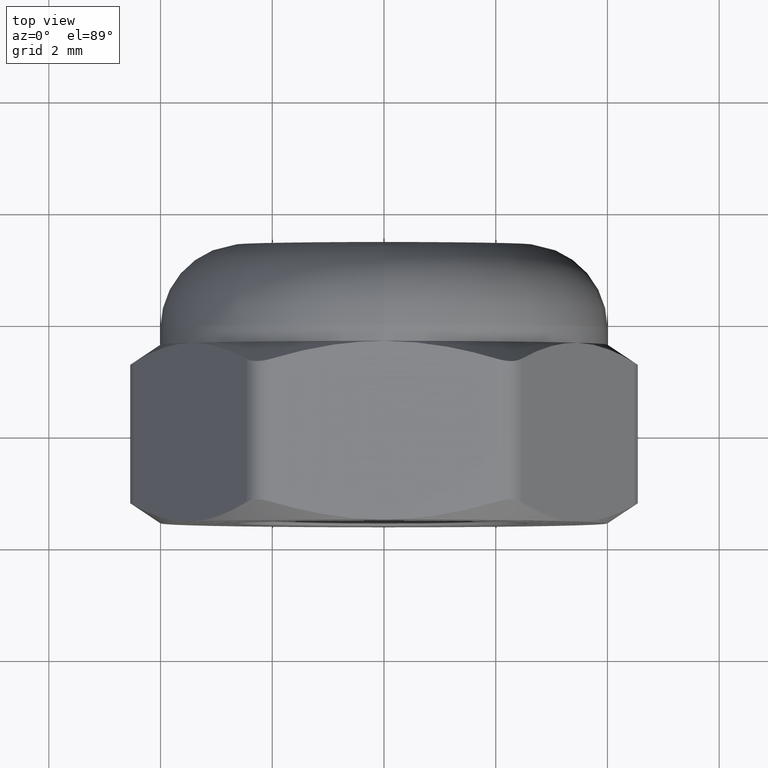
[diagram: clean part render]
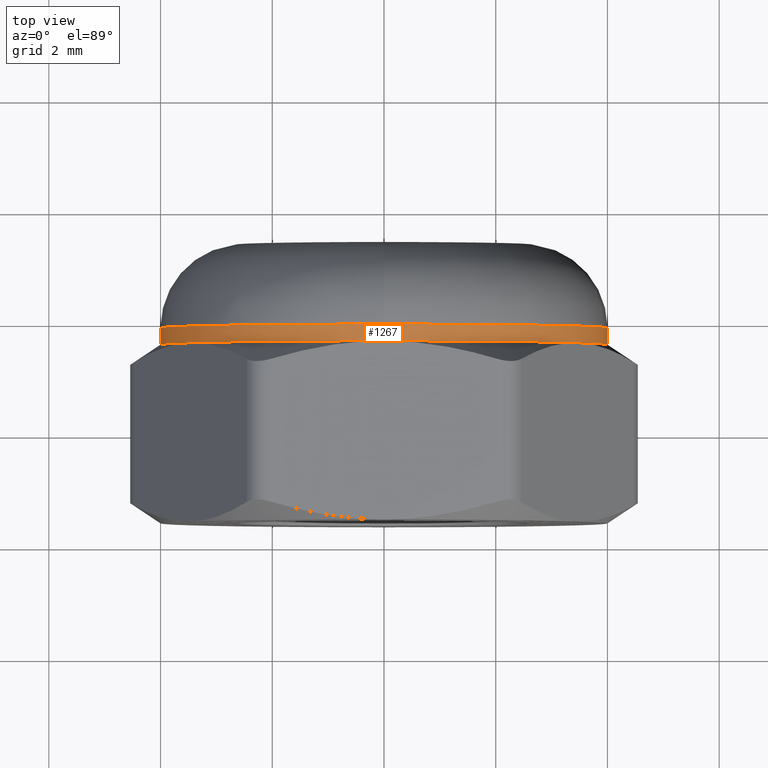
[diagram: same view with one face highlighted and labeled with its STEP entity id]
A machine part, top view. The second image highlights one B-rep face of the part: STEP entity #1267.
In plain terms, the highlighted cylindrical surface (bore or boss wall) has radius 4 mm, axis along (-0, -1, -0).
Its self-contained STEP definition (entity closure, byte-faithful):
#157 = AXIS2_PLACEMENT_3D ( 'NONE', #9263, #689, #8183 ) ;
#689 = DIRECTION ( 'NONE',  ( -0.000000000000000000, -1.000000000000000000, -0.000000000000000000 ) ) ;
#770 = DIRECTION ( 'NONE',  ( 0.000000000000000000, 0.000000000000000000, 1.000000000000000000 ) ) ;
#796 = AXIS2_PLACEMENT_3D ( 'NONE', #15243, #15446, #6678 ) ;
#1267 = ADVANCED_FACE ( 'NONE', ( #5284, #15843 ), #14663, .T. ) ;
#1473 = AXIS2_PLACEMENT_3D ( 'NONE', #6142, #9878, #3290 ) ;
#1887 = CARTESIAN_POINT ( 'NONE',  ( -3.464101615137753942, 1.600000000000000089, 2.000000000000000444 ) ) ;
#2007 = DIRECTION ( 'NONE',  ( -0.000000000000000000, -1.000000000000000000, -0.000000000000000000 ) ) ;
#2447 = ORIENTED_EDGE ( 'NONE', *, *, #7331, .F. ) ;
#2471 = VERTEX_POINT ( 'NONE', #13709 ) ;
#2976 = DIRECTION ( 'NONE',  ( 0.000000000000000000, 0.000000000000000000, -1.000000000000000000 ) ) ;
#2998 = VERTEX_POINT ( 'NONE', #6476 ) ;
#3082 = EDGE_CURVE ( 'NONE', #5187, #9840, #11122, .T. ) ;
#3130 = DIRECTION ( 'NONE',  ( 1.776356839400250465E-15, 0.000000000000000000, 1.000000000000000000 ) ) ;
#3290 = DIRECTION ( 'NONE',  ( 0.000000000000000000, 0.000000000000000000, 1.000000000000000000 ) ) ;
#4056 = EDGE_CURVE ( 'NONE', #2998, #5187, #9327, .T. ) ;
#4168 = EDGE_LOOP ( 'NONE', ( #13870 ) ) ;
#4842 = ORIENTED_EDGE ( 'NONE', *, *, #3082, .F. ) ;
#4859 = VERTEX_POINT ( 'NONE', #1887 ) ;
#4913 = EDGE_CURVE ( 'NONE', #2471, #11540, #10287, .T. ) ;
#5010 = AXIS2_PLACEMENT_3D ( 'NONE', #12049, #2007, #13301 ) ;
#5070 = ORIENTED_EDGE ( 'NONE', *, *, #7014, .F. ) ;
#5114 = ORIENTED_EDGE ( 'NONE', *, *, #4913, .F. ) ;
#5166 = CARTESIAN_POINT ( 'NONE',  ( 0.000000000000000000, 1.899999999999999689, 4.000000000000000000 ) ) ;
#5187 = VERTEX_POINT ( 'NONE', #11197 ) ;
#5213 = EDGE_CURVE ( 'NONE', #11540, #2998, #14598, .T. ) ;
#5284 = FACE_OUTER_BOUND ( 'NONE', #4168, .T. ) ;
#5433 = DIRECTION ( 'NONE',  ( -0.000000000000000000, -1.000000000000000000, -0.000000000000000000 ) ) ;
#5625 = AXIS2_PLACEMENT_3D ( 'NONE', #10332, #5433, #2976 ) ;
#5862 = CARTESIAN_POINT ( 'NONE',  ( 0.000000000000000000, 1.600000000000000089, 0.000000000000000000 ) ) ;
#6142 = CARTESIAN_POINT ( 'NONE',  ( 0.000000000000000000, 1.899999999999999689, 0.000000000000000000 ) ) ;
#6326 = CIRCLE ( 'NONE', #1473, 4.000000000000000000 ) ;
#6455 = ORIENTED_EDGE ( 'NONE', *, *, #4056, .F. ) ;
#6476 = CARTESIAN_POINT ( 'NONE',  ( 3.464101615137754386, 1.600000000000000089, -2.000000000000000888 ) ) ;
#6678 = DIRECTION ( 'NONE',  ( 0.000000000000000000, 0.000000000000000000, -1.000000000000000000 ) ) ;
#7010 = CARTESIAN_POINT ( 'NONE',  ( 0.000000000000000000, 1.600000000000000089, 0.000000000000000000 ) ) ;
#7014 = EDGE_CURVE ( 'NONE', #4859, #2471, #8791, .T. ) ;
#7184 = AXIS2_PLACEMENT_3D ( 'NONE', #7010, #10594, #3130 ) ;
#7331 = EDGE_CURVE ( 'NONE', #9840, #4859, #8408, .T. ) ;
#7725 = ORIENTED_EDGE ( 'NONE', *, *, #5213, .F. ) ;
#8183 = DIRECTION ( 'NONE',  ( 8.881784197001252323E-16, 0.000000000000000000, 1.000000000000000000 ) ) ;
#8253 = DIRECTION ( 'NONE',  ( -0.000000000000000000, -1.000000000000000000, -0.000000000000000000 ) ) ;
#8339 = EDGE_LOOP ( 'NONE', ( #4842, #6455, #7725, #5114, #5070, #2447 ) ) ;
#8408 = CIRCLE ( 'NONE', #5010, 4.000000000000000000 ) ;
#8791 = CIRCLE ( 'NONE', #10963, 4.000000000000000000 ) ;
#9263 = CARTESIAN_POINT ( 'NONE',  ( 0.000000000000000000, 1.600000000000000089, 0.000000000000000000 ) ) ;
#9327 = CIRCLE ( 'NONE', #157, 4.000000000000000000 ) ;
#9401 = DIRECTION ( 'NONE',  ( -0.000000000000000000, -1.000000000000000000, -0.000000000000000000 ) ) ;
#9840 = VERTEX_POINT ( 'NONE', #13856 ) ;
#9878 = DIRECTION ( 'NONE',  ( -0.000000000000000000, -1.000000000000000000, -0.000000000000000000 ) ) ;
#9887 = AXIS2_PLACEMENT_3D ( 'NONE', #13065, #9401, #12039 ) ;
#10287 = CIRCLE ( 'NONE', #7184, 4.000000000000000000 ) ;
#10332 = CARTESIAN_POINT ( 'NONE',  ( 0.000000000000000000, 1.600000000000000089, 0.000000000000000000 ) ) ;
#10594 = DIRECTION ( 'NONE',  ( -0.000000000000000000, -1.000000000000000000, -0.000000000000000000 ) ) ;
#10963 = AXIS2_PLACEMENT_3D ( 'NONE', #5862, #8253, #770 ) ;
#11122 = CIRCLE ( 'NONE', #9887, 4.000000000000000000 ) ;
#11197 = CARTESIAN_POINT ( 'NONE',  ( 3.464101615137755275, 1.600000000000000089, 1.999999999999999112 ) ) ;
#11540 = VERTEX_POINT ( 'NONE', #14759 ) ;
#12039 = DIRECTION ( 'NONE',  ( -8.881784197001252323E-16, 0.000000000000000000, 1.000000000000000000 ) ) ;
#12049 = CARTESIAN_POINT ( 'NONE',  ( 0.000000000000000000, 1.600000000000000089, 0.000000000000000000 ) ) ;
#13065 = CARTESIAN_POINT ( 'NONE',  ( 0.000000000000000000, 1.600000000000000089, 0.000000000000000000 ) ) ;
#13301 = DIRECTION ( 'NONE',  ( 0.000000000000000000, 0.000000000000000000, 1.000000000000000000 ) ) ;
#13709 = CARTESIAN_POINT ( 'NONE',  ( -3.464101615137754386, 1.600000000000000089, -2.000000000000000444 ) ) ;
#13856 = CARTESIAN_POINT ( 'NONE',  ( 0.000000000000000000, 1.600000000000000089, 4.000000000000000000 ) ) ;
#13870 = ORIENTED_EDGE ( 'NONE', *, *, #14212, .T. ) ;
#14101 = VERTEX_POINT ( 'NONE', #5166 ) ;
#14212 = EDGE_CURVE ( 'NONE', #14101, #14101, #6326, .T. ) ;
#14598 = CIRCLE ( 'NONE', #5625, 4.000000000000000000 ) ;
#14663 = CYLINDRICAL_SURFACE ( 'NONE', #796, 4.000000000000000000 ) ;
#14759 = CARTESIAN_POINT ( 'NONE',  ( -7.511572993685799101E-16, 1.600000000000000089, -4.000000000000000000 ) ) ;
#15243 = CARTESIAN_POINT ( 'NONE',  ( 0.000000000000000000, 3.399999999999999911, 0.000000000000000000 ) ) ;
#15446 = DIRECTION ( 'NONE',  ( -0.000000000000000000, -1.000000000000000000, -0.000000000000000000 ) ) ;
#15843 = FACE_OUTER_BOUND ( 'NONE', #8339, .T. ) ;